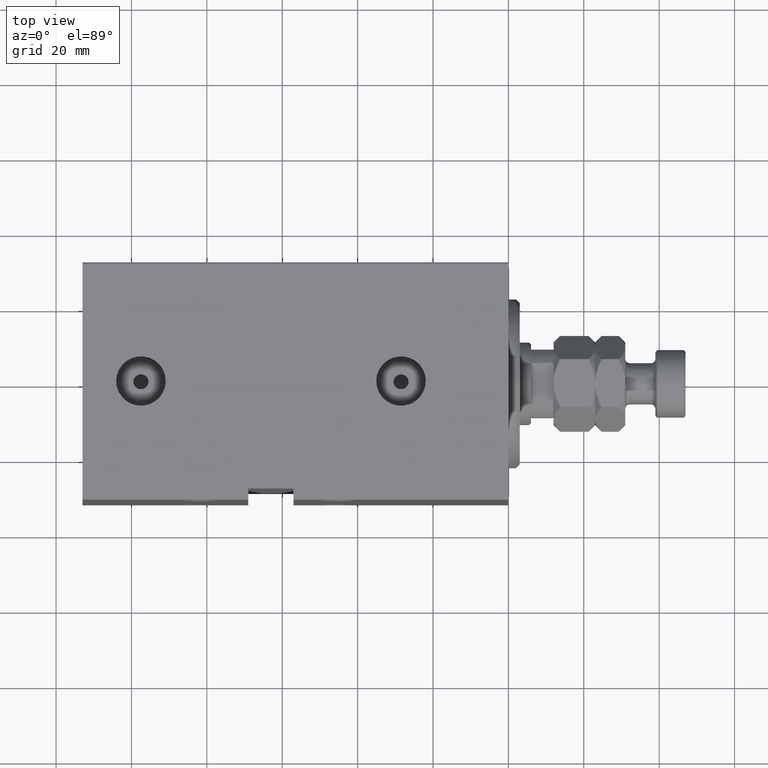
[diagram: clean part render]
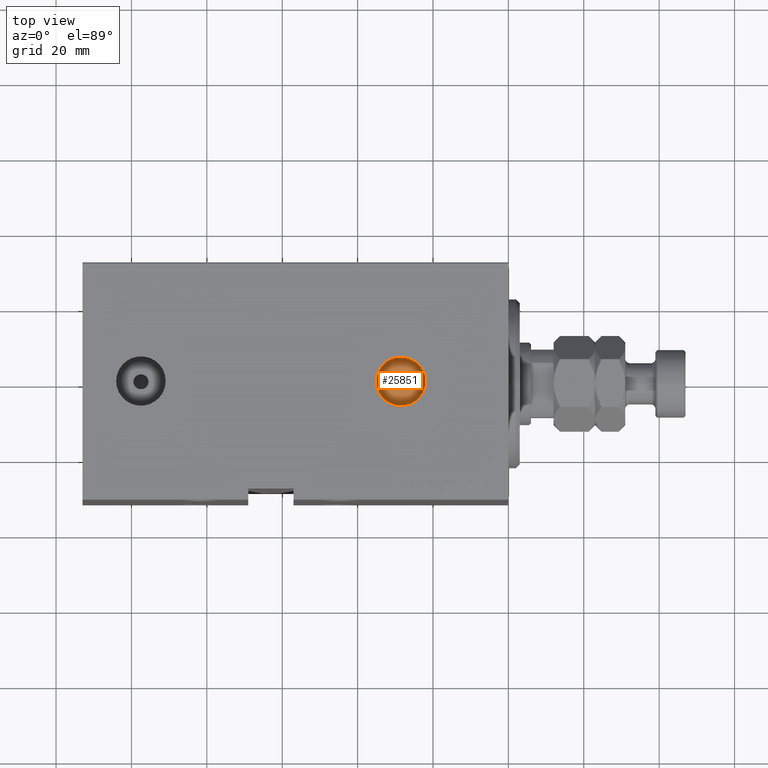
[diagram: same view with one face highlighted and labeled with its STEP entity id]
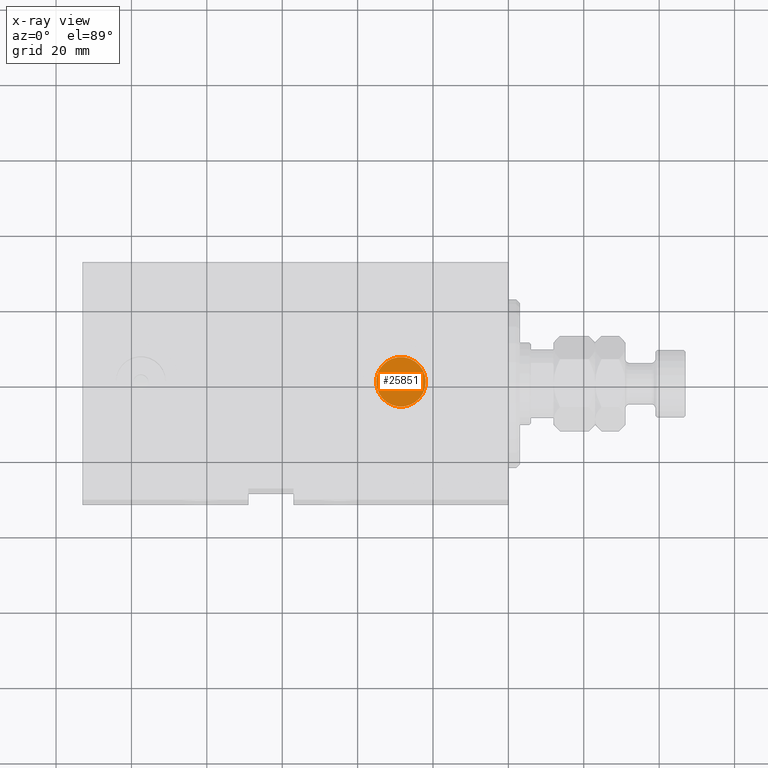
[diagram: x-ray of the same camera — body ghosted, the highlighted face saturated]
A machine part, top view. The second image highlights one B-rep face of the part: STEP entity #25851.
The next image is the same camera in x-ray: the body ghosted, the highlighted face saturated — about 0% of this face is hidden behind the body in this view.
In plain terms, the highlighted planar face has unit normal (0, 0, 1).
Its self-contained STEP definition (entity closure, byte-faithful):
#470 = ORIENTED_EDGE ( 'NONE', *, *, #37816, .T. ) ;
#1861 = ORIENTED_EDGE ( 'NONE', *, *, #21777, .T. ) ;
#2148 = CIRCLE ( 'NONE', #10297, 1.999999999999998224 ) ;
#3370 = AXIS2_PLACEMENT_3D ( 'NONE', #40880, #23395, #12722 ) ;
#4514 = DIRECTION ( 'NONE',  ( 0.000000000000000000, 0.000000000000000000, 1.000000000000000000 ) ) ;
#6210 = EDGE_LOOP ( 'NONE', ( #37755, #35148 ) ) ;
#6608 = FACE_BOUND ( 'NONE', #6210, .T. ) ;
#7532 = PLANE ( 'NONE',  #33878 ) ;
#7655 = EDGE_LOOP ( 'NONE', ( #1861, #470 ) ) ;
#8331 = VERTEX_POINT ( 'NONE', #44354 ) ;
#10297 = AXIS2_PLACEMENT_3D ( 'NONE', #16485, #16697, #31360 ) ;
#12233 = DIRECTION ( 'NONE',  ( 0.000000000000000000, 0.000000000000000000, 1.000000000000000000 ) ) ;
#12722 = DIRECTION ( 'NONE',  ( 1.000000000000000000, 0.000000000000000000, 0.000000000000000000 ) ) ;
#13531 = CARTESIAN_POINT ( 'NONE',  ( 30.50000000000000000, -9.361999711620863359E-15, 29.23999999999999488 ) ) ;
#13815 = EDGE_CURVE ( 'NONE', #17829, #8331, #2148, .T. ) ;
#14488 = CIRCLE ( 'NONE', #3370, 6.579999999999999183 ) ;
#15499 = DIRECTION ( 'NONE',  ( 1.000000000000000000, 0.000000000000000000, 0.000000000000000000 ) ) ;
#15666 = CARTESIAN_POINT ( 'NONE',  ( 28.50000000000000000, -9.361999711620863359E-15, 29.23999999999999488 ) ) ;
#16060 = CARTESIAN_POINT ( 'NONE',  ( 28.50000000000000000, -9.361999711620863359E-15, 29.23999999999999488 ) ) ;
#16485 = CARTESIAN_POINT ( 'NONE',  ( 28.50000000000000000, -9.361999711620863359E-15, 29.23999999999999488 ) ) ;
#16697 = DIRECTION ( 'NONE',  ( 0.000000000000000000, 0.000000000000000000, 1.000000000000000000 ) ) ;
#17829 = VERTEX_POINT ( 'NONE', #13531 ) ;
#18875 = VERTEX_POINT ( 'NONE', #22896 ) ;
#20573 = CARTESIAN_POINT ( 'NONE',  ( 35.07999999999999829, -9.361999711620863359E-15, 29.23999999999999488 ) ) ;
#20783 = FACE_OUTER_BOUND ( 'NONE', #7655, .T. ) ;
#21777 = EDGE_CURVE ( 'NONE', #33934, #18875, #14488, .T. ) ;
#22325 = AXIS2_PLACEMENT_3D ( 'NONE', #22462, #12233, #15499 ) ;
#22462 = CARTESIAN_POINT ( 'NONE',  ( 28.50000000000000000, -9.361999711620863359E-15, 29.23999999999999488 ) ) ;
#22896 = CARTESIAN_POINT ( 'NONE',  ( 21.92000000000000171, -8.556182117781905894E-15, 29.23999999999999488 ) ) ;
#23395 = DIRECTION ( 'NONE',  ( 0.000000000000000000, 0.000000000000000000, 1.000000000000000000 ) ) ;
#25429 = DIRECTION ( 'NONE',  ( 1.000000000000000000, 0.000000000000000000, -0.000000000000000000 ) ) ;
#25851 = ADVANCED_FACE ( 'NONE', ( #6608, #20783 ), #7532, .T. ) ;
#26772 = DIRECTION ( 'NONE',  ( 0.000000000000000000, 0.000000000000000000, 1.000000000000000000 ) ) ;
#31360 = DIRECTION ( 'NONE',  ( 1.000000000000000000, 0.000000000000000000, 0.000000000000000000 ) ) ;
#32614 = AXIS2_PLACEMENT_3D ( 'NONE', #16060, #26772, #40960 ) ;
#33878 = AXIS2_PLACEMENT_3D ( 'NONE', #15666, #4514, #25429 ) ;
#33934 = VERTEX_POINT ( 'NONE', #20573 ) ;
#35148 = ORIENTED_EDGE ( 'NONE', *, *, #43537, .F. ) ;
#37755 = ORIENTED_EDGE ( 'NONE', *, *, #13815, .F. ) ;
#37816 = EDGE_CURVE ( 'NONE', #18875, #33934, #45202, .T. ) ;
#40880 = CARTESIAN_POINT ( 'NONE',  ( 28.50000000000000000, -9.361999711620863359E-15, 29.23999999999999488 ) ) ;
#40960 = DIRECTION ( 'NONE',  ( 1.000000000000000000, 0.000000000000000000, 0.000000000000000000 ) ) ;
#42393 = CIRCLE ( 'NONE', #22325, 1.999999999999998224 ) ;
#43537 = EDGE_CURVE ( 'NONE', #8331, #17829, #42393, .T. ) ;
#44354 = CARTESIAN_POINT ( 'NONE',  ( 26.50000000000000355, -9.117070351791393062E-15, 29.23999999999999488 ) ) ;
#45202 = CIRCLE ( 'NONE', #32614, 6.579999999999999183 ) ;